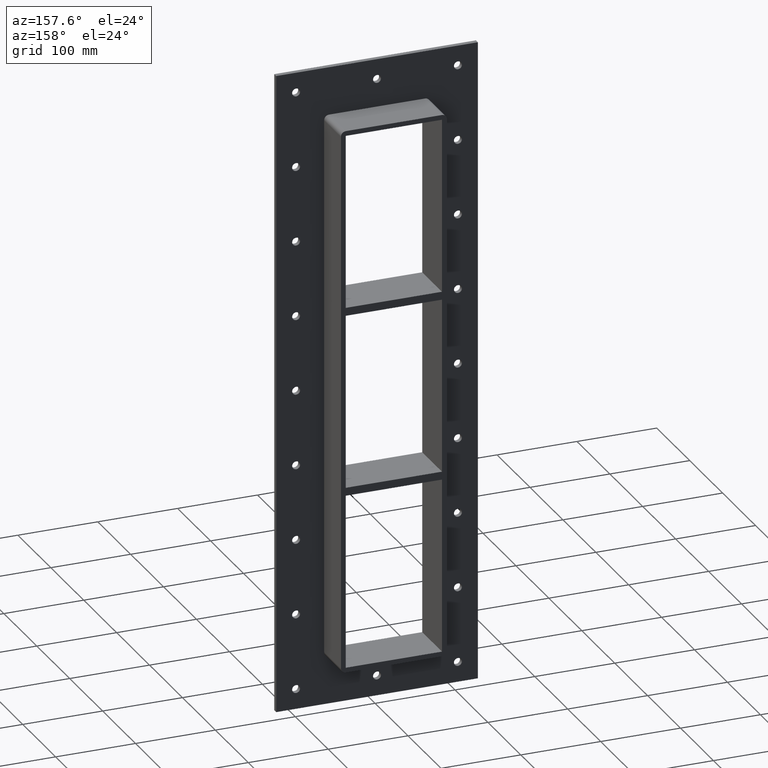
[diagram: clean part render]
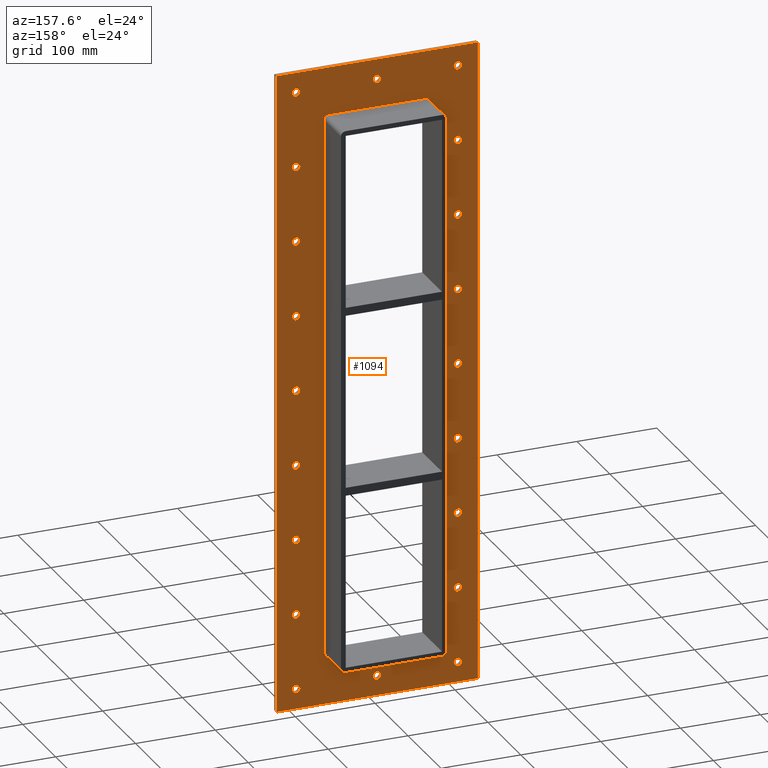
[diagram: same view with one face highlighted and labeled with its STEP entity id]
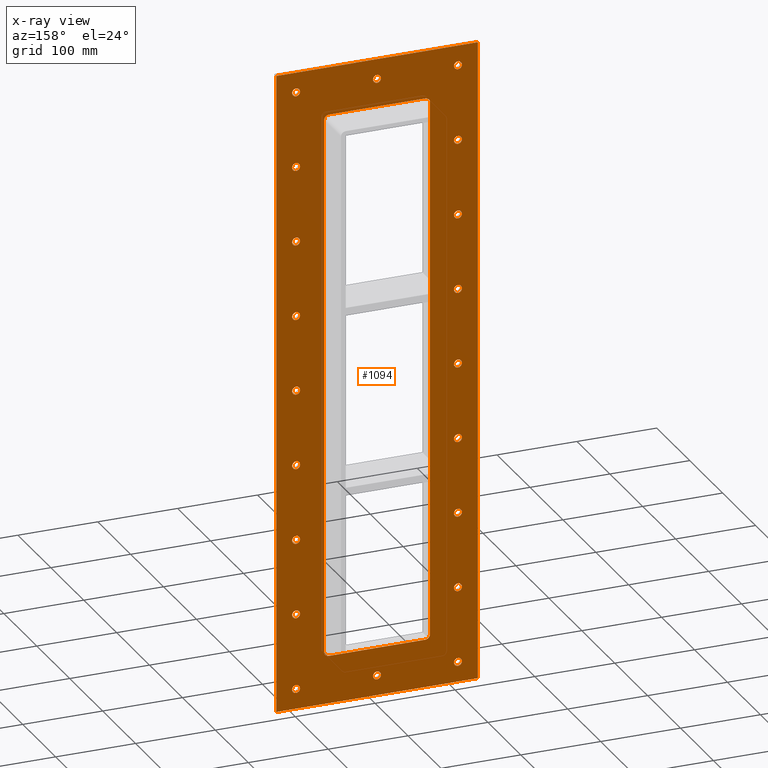
[diagram: x-ray of the same camera — body ghosted, the highlighted face saturated]
A machine part, auxiliary view. The second image highlights one B-rep face of the part: STEP entity #1094.
The next image is the same camera in x-ray: the body ghosted, the highlighted face saturated — about 0% of this face is hidden behind the body in this view.
In plain terms, the highlighted planar face has unit normal (0, 1, 0).
Its self-contained STEP definition (entity closure, byte-faithful):
#73=CARTESIAN_POINT('',(-106.25000000000006,5.999999999999943,-378.00000000000006));
#74=VERTEX_POINT('',#73);
#75=CARTESIAN_POINT('',(-101.25000000000006,5.999999999999943,-378.00000000000006));
#76=DIRECTION('',(0.0,-1.0,0.0));
#77=DIRECTION('',(1.0,0.0,0.0));
#78=AXIS2_PLACEMENT_3D('',#75,#76,#77);
#79=CIRCLE('',#78,5.0);
#80=EDGE_CURVE('',#74,#74,#79,.T.);
#101=CARTESIAN_POINT('',(96.349999999999966,5.999999999999943,-283.5));
#102=VERTEX_POINT('',#101);
#103=CARTESIAN_POINT('',(101.34999999999997,5.999999999999943,-283.5));
#104=DIRECTION('',(0.0,-1.0,0.0));
#105=DIRECTION('',(1.0,0.0,0.0));
#106=AXIS2_PLACEMENT_3D('',#103,#104,#105);
#107=CIRCLE('',#106,5.0);
#108=EDGE_CURVE('',#102,#102,#107,.T.);
#129=CARTESIAN_POINT('',(-106.25000000000006,5.999999999999943,-283.5));
#130=VERTEX_POINT('',#129);
#131=CARTESIAN_POINT('',(-101.25000000000006,5.999999999999943,-283.5));
#132=DIRECTION('',(0.0,-1.0,0.0));
#133=DIRECTION('',(1.0,0.0,0.0));
#134=AXIS2_PLACEMENT_3D('',#131,#132,#133);
#135=CIRCLE('',#134,5.0);
#136=EDGE_CURVE('',#130,#130,#135,.T.);
#157=CARTESIAN_POINT('',(96.349999999999966,5.999999999999943,-189.0));
#158=VERTEX_POINT('',#157);
#159=CARTESIAN_POINT('',(101.34999999999997,5.999999999999943,-189.0));
#160=DIRECTION('',(0.0,-1.0,0.0));
#161=DIRECTION('',(1.0,0.0,0.0));
#162=AXIS2_PLACEMENT_3D('',#159,#160,#161);
#163=CIRCLE('',#162,5.0);
#164=EDGE_CURVE('',#158,#158,#163,.T.);
#185=CARTESIAN_POINT('',(-106.25000000000006,5.999999999999943,-189.0));
#186=VERTEX_POINT('',#185);
#187=CARTESIAN_POINT('',(-101.25000000000006,5.999999999999943,-189.0));
#188=DIRECTION('',(0.0,-1.0,0.0));
#189=DIRECTION('',(1.0,0.0,0.0));
#190=AXIS2_PLACEMENT_3D('',#187,#188,#189);
#191=CIRCLE('',#190,5.0);
#192=EDGE_CURVE('',#186,#186,#191,.T.);
#213=CARTESIAN_POINT('',(96.349999999999966,5.999999999999943,-94.500000000000014));
#214=VERTEX_POINT('',#213);
#215=CARTESIAN_POINT('',(101.34999999999997,5.999999999999943,-94.500000000000014));
#216=DIRECTION('',(0.0,-1.0,0.0));
#217=DIRECTION('',(1.0,0.0,0.0));
#218=AXIS2_PLACEMENT_3D('',#215,#216,#217);
#219=CIRCLE('',#218,5.0);
#220=EDGE_CURVE('',#214,#214,#219,.T.);
#241=CARTESIAN_POINT('',(-106.25000000000006,5.999999999999943,-94.500000000000014));
#242=VERTEX_POINT('',#241);
#243=CARTESIAN_POINT('',(-101.25000000000006,5.999999999999943,-94.500000000000014));
#244=DIRECTION('',(0.0,-1.0,0.0));
#245=DIRECTION('',(1.0,0.0,0.0));
#246=AXIS2_PLACEMENT_3D('',#243,#244,#245);
#247=CIRCLE('',#246,5.0);
#248=EDGE_CURVE('',#242,#242,#247,.T.);
#269=CARTESIAN_POINT('',(96.349999999999966,5.999999999999943,1.776357E-014));
#270=VERTEX_POINT('',#269);
#271=CARTESIAN_POINT('',(101.34999999999997,5.999999999999943,1.776357E-014));
#272=DIRECTION('',(0.0,-1.0,0.0));
#273=DIRECTION('',(1.0,0.0,0.0));
#274=AXIS2_PLACEMENT_3D('',#271,#272,#273);
#275=CIRCLE('',#274,5.0);
#276=EDGE_CURVE('',#270,#270,#275,.T.);
#297=CARTESIAN_POINT('',(-106.25000000000006,5.999999999999943,1.776357E-014));
#298=VERTEX_POINT('',#297);
#299=CARTESIAN_POINT('',(-101.25000000000006,5.999999999999943,1.776357E-014));
#300=DIRECTION('',(0.0,-1.0,0.0));
#301=DIRECTION('',(1.0,0.0,0.0));
#302=AXIS2_PLACEMENT_3D('',#299,#300,#301);
#303=CIRCLE('',#302,5.0);
#304=EDGE_CURVE('',#298,#298,#303,.T.);
#325=CARTESIAN_POINT('',(96.349999999999966,5.999999999999943,94.500000000000043));
#326=VERTEX_POINT('',#325);
#327=CARTESIAN_POINT('',(101.34999999999997,5.999999999999943,94.500000000000043));
#328=DIRECTION('',(0.0,-1.0,0.0));
#329=DIRECTION('',(1.0,0.0,0.0));
#330=AXIS2_PLACEMENT_3D('',#327,#328,#329);
#331=CIRCLE('',#330,5.0);
#332=EDGE_CURVE('',#326,#326,#331,.T.);
#353=CARTESIAN_POINT('',(-106.25000000000006,5.999999999999943,94.500000000000043));
#354=VERTEX_POINT('',#353);
#355=CARTESIAN_POINT('',(-101.25000000000006,5.999999999999943,94.500000000000043));
#356=DIRECTION('',(0.0,-1.0,0.0));
#357=DIRECTION('',(1.0,0.0,0.0));
#358=AXIS2_PLACEMENT_3D('',#355,#356,#357);
#359=CIRCLE('',#358,5.0);
#360=EDGE_CURVE('',#354,#354,#359,.T.);
#381=CARTESIAN_POINT('',(96.349999999999966,5.999999999999943,189.0));
#382=VERTEX_POINT('',#381);
#383=CARTESIAN_POINT('',(101.34999999999997,5.999999999999943,189.0));
#384=DIRECTION('',(0.0,-1.0,0.0));
#385=DIRECTION('',(1.0,0.0,0.0));
#386=AXIS2_PLACEMENT_3D('',#383,#384,#385);
#387=CIRCLE('',#386,5.0);
#388=EDGE_CURVE('',#382,#382,#387,.T.);
#409=CARTESIAN_POINT('',(-106.25000000000006,5.999999999999943,189.0));
#410=VERTEX_POINT('',#409);
#411=CARTESIAN_POINT('',(-101.25000000000006,5.999999999999943,189.0));
#412=DIRECTION('',(0.0,-1.0,0.0));
#413=DIRECTION('',(1.0,0.0,0.0));
#414=AXIS2_PLACEMENT_3D('',#411,#412,#413);
#415=CIRCLE('',#414,5.0);
#416=EDGE_CURVE('',#410,#410,#415,.T.);
#437=CARTESIAN_POINT('',(96.349999999999966,5.999999999999943,283.5));
#438=VERTEX_POINT('',#437);
#439=CARTESIAN_POINT('',(101.34999999999997,5.999999999999943,283.5));
#440=DIRECTION('',(0.0,-1.0,0.0));
#441=DIRECTION('',(1.0,0.0,0.0));
#442=AXIS2_PLACEMENT_3D('',#439,#440,#441);
#443=CIRCLE('',#442,5.0);
#444=EDGE_CURVE('',#438,#438,#443,.T.);
#465=CARTESIAN_POINT('',(-106.25000000000006,5.999999999999943,283.5));
#466=VERTEX_POINT('',#465);
#467=CARTESIAN_POINT('',(-101.25000000000006,5.999999999999943,283.5));
#468=DIRECTION('',(0.0,-1.0,0.0));
#469=DIRECTION('',(1.0,0.0,0.0));
#470=AXIS2_PLACEMENT_3D('',#467,#468,#469);
#471=CIRCLE('',#470,5.0);
#472=EDGE_CURVE('',#466,#466,#471,.T.);
#493=CARTESIAN_POINT('',(-4.950000000000046,5.999999999999943,378.00000000000006));
#494=VERTEX_POINT('',#493);
#495=CARTESIAN_POINT('',(0.049999999999955,5.999999999999943,378.00000000000006));
#496=DIRECTION('',(0.0,-1.0,0.0));
#497=DIRECTION('',(1.0,0.0,0.0));
#498=AXIS2_PLACEMENT_3D('',#495,#496,#497);
#499=CIRCLE('',#498,5.0);
#500=EDGE_CURVE('',#494,#494,#499,.T.);
#521=CARTESIAN_POINT('',(-4.950000000000046,5.999999999999943,-378.00000000000006));
#522=VERTEX_POINT('',#521);
#523=CARTESIAN_POINT('',(0.049999999999955,5.999999999999943,-378.00000000000006));
#524=DIRECTION('',(0.0,-1.0,0.0));
#525=DIRECTION('',(1.0,0.0,0.0));
#526=AXIS2_PLACEMENT_3D('',#523,#524,#525);
#527=CIRCLE('',#526,5.0);
#528=EDGE_CURVE('',#522,#522,#527,.T.);
#549=CARTESIAN_POINT('',(96.349999999999966,5.999999999999943,-378.00000000000006));
#550=VERTEX_POINT('',#549);
#551=CARTESIAN_POINT('',(101.34999999999997,5.999999999999943,-378.00000000000006));
#552=DIRECTION('',(0.0,-1.0,0.0));
#553=DIRECTION('',(1.0,0.0,0.0));
#554=AXIS2_PLACEMENT_3D('',#551,#552,#553);
#555=CIRCLE('',#554,5.0);
#556=EDGE_CURVE('',#550,#550,#555,.T.);
#577=CARTESIAN_POINT('',(-106.25000000000006,5.999999999999943,378.00000000000006));
#578=VERTEX_POINT('',#577);
#579=CARTESIAN_POINT('',(-101.25000000000006,5.999999999999943,378.00000000000006));
#580=DIRECTION('',(0.0,-1.0,0.0));
#581=DIRECTION('',(1.0,0.0,0.0));
#582=AXIS2_PLACEMENT_3D('',#579,#580,#581);
#583=CIRCLE('',#582,5.0);
#584=EDGE_CURVE('',#578,#578,#583,.T.);
#605=CARTESIAN_POINT('',(96.349999999999966,5.999999999999943,378.00000000000006));
#606=VERTEX_POINT('',#605);
#607=CARTESIAN_POINT('',(101.34999999999997,5.999999999999943,378.00000000000006));
#608=DIRECTION('',(0.0,-1.0,0.0));
#609=DIRECTION('',(1.0,0.0,0.0));
#610=AXIS2_PLACEMENT_3D('',#607,#608,#609);
#611=CIRCLE('',#610,5.0);
#612=EDGE_CURVE('',#606,#606,#611,.T.);
#925=CARTESIAN_POINT('',(-8.055279E-015,6.000000000000001,0.0));
#926=DIRECTION('',(0.0,1.0,0.0));
#927=DIRECTION('',(0.0,0.0,1.0));
#928=AXIS2_PLACEMENT_3D('',#925,#926,#927);
#929=PLANE('',#928);
#930=CARTESIAN_POINT('',(-126.25000000000001,6.000000000000001,403.00000000000006));
#931=VERTEX_POINT('',#930);
#932=CARTESIAN_POINT('',(126.24999999999999,6.000000000000001,403.00000000000006));
#933=VERTEX_POINT('',#932);
#934=CARTESIAN_POINT('',(-126.25000000000001,6.000000000000001,403.00000000000006));
#935=DIRECTION('',(1.0,0.0,0.0));
#936=VECTOR('',#935,252.5);
#937=LINE('',#934,#936);
#938=EDGE_CURVE('',#931,#933,#937,.T.);
#939=ORIENTED_EDGE('',*,*,#938,.T.);
#940=CARTESIAN_POINT('',(126.24999999999999,6.000000000000001,-403.00000000000006));
#941=VERTEX_POINT('',#940);
#942=CARTESIAN_POINT('',(126.25,6.000000000000001,403.00000000000006));
#943=DIRECTION('',(0.0,0.0,-1.0));
#944=VECTOR('',#943,806.00000000000011);
#945=LINE('',#942,#944);
#946=EDGE_CURVE('',#933,#941,#945,.T.);
#947=ORIENTED_EDGE('',*,*,#946,.T.);
#948=CARTESIAN_POINT('',(-126.25000000000001,6.000000000000001,-403.00000000000006));
#949=VERTEX_POINT('',#948);
#950=CARTESIAN_POINT('',(126.25,6.000000000000001,-403.00000000000006));
#951=DIRECTION('',(-1.0,0.0,0.0));
#952=VECTOR('',#951,252.5);
#953=LINE('',#950,#952);
#954=EDGE_CURVE('',#941,#949,#953,.T.);
#955=ORIENTED_EDGE('',*,*,#954,.T.);
#956=CARTESIAN_POINT('',(-126.25000000000001,6.000000000000001,-403.00000000000006));
#957=DIRECTION('',(0.0,0.0,1.0));
#958=VECTOR('',#957,806.00000000000011);
#959=LINE('',#956,#958);
#960=EDGE_CURVE('',#949,#931,#959,.T.);
#961=ORIENTED_EDGE('',*,*,#960,.T.);
#962=EDGE_LOOP('',(#939,#947,#955,#961));
#963=FACE_OUTER_BOUND('',#962,.T.);
#964=ORIENTED_EDGE('',*,*,#80,.T.);
#965=EDGE_LOOP('',(#964));
#966=FACE_BOUND('',#965,.T.);
#967=ORIENTED_EDGE('',*,*,#108,.T.);
#968=EDGE_LOOP('',(#967));
#969=FACE_BOUND('',#968,.T.);
#970=ORIENTED_EDGE('',*,*,#136,.T.);
#971=EDGE_LOOP('',(#970));
#972=FACE_BOUND('',#971,.T.);
#973=ORIENTED_EDGE('',*,*,#164,.T.);
#974=EDGE_LOOP('',(#973));
#975=FACE_BOUND('',#974,.T.);
#976=ORIENTED_EDGE('',*,*,#192,.T.);
#977=EDGE_LOOP('',(#976));
#978=FACE_BOUND('',#977,.T.);
#979=ORIENTED_EDGE('',*,*,#220,.T.);
#980=EDGE_LOOP('',(#979));
#981=FACE_BOUND('',#980,.T.);
#982=ORIENTED_EDGE('',*,*,#248,.T.);
#983=EDGE_LOOP('',(#982));
#984=FACE_BOUND('',#983,.T.);
#985=ORIENTED_EDGE('',*,*,#276,.T.);
#986=EDGE_LOOP('',(#985));
#987=FACE_BOUND('',#986,.T.);
#988=ORIENTED_EDGE('',*,*,#304,.T.);
#989=EDGE_LOOP('',(#988));
#990=FACE_BOUND('',#989,.T.);
#991=ORIENTED_EDGE('',*,*,#332,.T.);
#992=EDGE_LOOP('',(#991));
#993=FACE_BOUND('',#992,.T.);
#994=ORIENTED_EDGE('',*,*,#360,.T.);
#995=EDGE_LOOP('',(#994));
#996=FACE_BOUND('',#995,.T.);
#997=ORIENTED_EDGE('',*,*,#388,.T.);
#998=EDGE_LOOP('',(#997));
#999=FACE_BOUND('',#998,.T.);
#1000=ORIENTED_EDGE('',*,*,#416,.T.);
#1001=EDGE_LOOP('',(#1000));
#1002=FACE_BOUND('',#1001,.T.);
#1003=ORIENTED_EDGE('',*,*,#444,.T.);
#1004=EDGE_LOOP('',(#1003));
#1005=FACE_BOUND('',#1004,.T.);
#1006=ORIENTED_EDGE('',*,*,#472,.T.);
#1007=EDGE_LOOP('',(#1006));
#1008=FACE_BOUND('',#1007,.T.);
#1009=ORIENTED_EDGE('',*,*,#500,.T.);
#1010=EDGE_LOOP('',(#1009));
#1011=FACE_BOUND('',#1010,.T.);
#1012=ORIENTED_EDGE('',*,*,#528,.T.);
#1013=EDGE_LOOP('',(#1012));
#1014=FACE_BOUND('',#1013,.T.);
#1015=ORIENTED_EDGE('',*,*,#556,.T.);
#1016=EDGE_LOOP('',(#1015));
#1017=FACE_BOUND('',#1016,.T.);
#1018=ORIENTED_EDGE('',*,*,#584,.T.);
#1019=EDGE_LOOP('',(#1018));
#1020=FACE_BOUND('',#1019,.T.);
#1021=ORIENTED_EDGE('',*,*,#612,.T.);
#1022=EDGE_LOOP('',(#1021));
#1023=FACE_BOUND('',#1022,.T.);
#1024=CARTESIAN_POINT('',(-60.25,6.000000000000001,-343.00000000000006));
#1025=VERTEX_POINT('',#1024);
#1026=CARTESIAN_POINT('',(-66.25,6.000000000000001,-337.0));
#1027=VERTEX_POINT('',#1026);
#1028=CARTESIAN_POINT('',(-60.25,6.000000000000001,-337.0));
#1029=DIRECTION('',(0.0,1.0,0.0));
#1030=DIRECTION('',(-0.707106781186551,0.0,-0.707106781186544));
#1031=AXIS2_PLACEMENT_3D('',#1028,#1029,#1030);
#1032=CIRCLE('',#1031,6.0);
#1033=EDGE_CURVE('',#1025,#1027,#1032,.T.);
#1034=ORIENTED_EDGE('',*,*,#1033,.F.);
#1035=CARTESIAN_POINT('',(60.25,6.000000000000001,-343.00000000000006));
#1036=VERTEX_POINT('',#1035);
#1037=CARTESIAN_POINT('',(60.25,6.000000000000001,-343.00000000000006));
#1038=DIRECTION('',(-1.0,0.0,0.0));
#1039=VECTOR('',#1038,120.5);
#1040=LINE('',#1037,#1039);
#1041=EDGE_CURVE('',#1036,#1025,#1040,.T.);
#1042=ORIENTED_EDGE('',*,*,#1041,.F.);
#1043=CARTESIAN_POINT('',(66.25,6.000000000000001,-337.0));
#1044=VERTEX_POINT('',#1043);
#1045=CARTESIAN_POINT('',(60.25,6.000000000000001,-337.0));
#1046=DIRECTION('',(0.0,1.0,0.0));
#1047=DIRECTION('',(0.707106781186551,0.0,-0.707106781186544));
#1048=AXIS2_PLACEMENT_3D('',#1045,#1046,#1047);
#1049=CIRCLE('',#1048,6.0);
#1050=EDGE_CURVE('',#1044,#1036,#1049,.T.);
#1051=ORIENTED_EDGE('',*,*,#1050,.F.);
#1052=CARTESIAN_POINT('',(66.25,6.000000000000001,337.0));
#1053=VERTEX_POINT('',#1052);
#1054=CARTESIAN_POINT('',(66.25,6.000000000000001,337.0));
#1055=DIRECTION('',(0.0,0.0,-1.0));
#1056=VECTOR('',#1055,674.00000000000011);
#1057=LINE('',#1054,#1056);
#1058=EDGE_CURVE('',#1053,#1044,#1057,.T.);
#1059=ORIENTED_EDGE('',*,*,#1058,.F.);
#1060=CARTESIAN_POINT('',(60.25,6.000000000000001,343.00000000000006));
#1061=VERTEX_POINT('',#1060);
#1062=CARTESIAN_POINT('',(60.25,6.000000000000001,337.0));
#1063=DIRECTION('',(0.0,1.0,0.0));
#1064=DIRECTION('',(0.707106781186551,0.0,0.707106781186544));
#1065=AXIS2_PLACEMENT_3D('',#1062,#1063,#1064);
#1066=CIRCLE('',#1065,6.0);
#1067=EDGE_CURVE('',#1061,#1053,#1066,.T.);
#1068=ORIENTED_EDGE('',*,*,#1067,.F.);
#1069=CARTESIAN_POINT('',(-60.25,6.000000000000001,343.00000000000006));
#1070=VERTEX_POINT('',#1069);
#1071=CARTESIAN_POINT('',(-60.250000000000007,6.000000000000001,343.00000000000006));
#1072=DIRECTION('',(1.0,0.0,0.0));
#1073=VECTOR('',#1072,120.5);
#1074=LINE('',#1071,#1073);
#1075=EDGE_CURVE('',#1070,#1061,#1074,.T.);
#1076=ORIENTED_EDGE('',*,*,#1075,.F.);
#1077=CARTESIAN_POINT('',(-66.25,6.000000000000001,337.0));
#1078=VERTEX_POINT('',#1077);
#1079=CARTESIAN_POINT('',(-60.25,6.000000000000001,337.0));
#1080=DIRECTION('',(0.0,1.0,0.0));
#1081=DIRECTION('',(-0.707106781186551,0.0,0.707106781186544));
#1082=AXIS2_PLACEMENT_3D('',#1079,#1080,#1081);
#1083=CIRCLE('',#1082,6.0);
#1084=EDGE_CURVE('',#1078,#1070,#1083,.T.);
#1085=ORIENTED_EDGE('',*,*,#1084,.F.);
#1086=CARTESIAN_POINT('',(-66.25,6.000000000000001,-337.0));
#1087=DIRECTION('',(0.0,0.0,1.0));
#1088=VECTOR('',#1087,674.00000000000011);
#1089=LINE('',#1086,#1088);
#1090=EDGE_CURVE('',#1027,#1078,#1089,.T.);
#1091=ORIENTED_EDGE('',*,*,#1090,.F.);
#1092=EDGE_LOOP('',(#1034,#1042,#1051,#1059,#1068,#1076,#1085,#1091));
#1093=FACE_BOUND('',#1092,.T.);
#1094=ADVANCED_FACE('',(#963,#966,#969,#972,#975,#978,#981,#984,#987,#990,#993,#996,#999,#1002,#1005,#1008,#1011,#1014,#1017,#1020,#1023,#1093),#929,.T.);